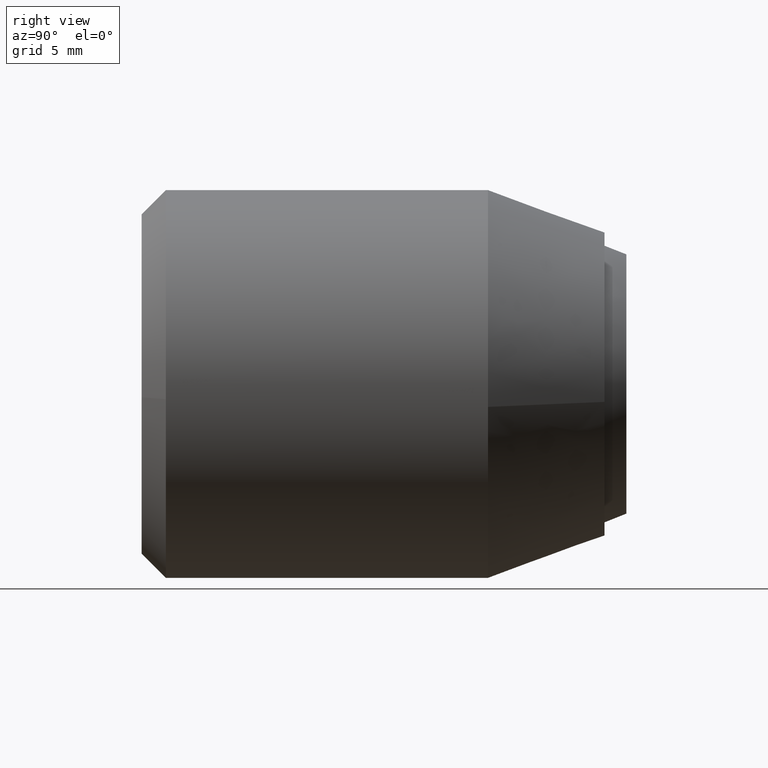
[diagram: clean part render]
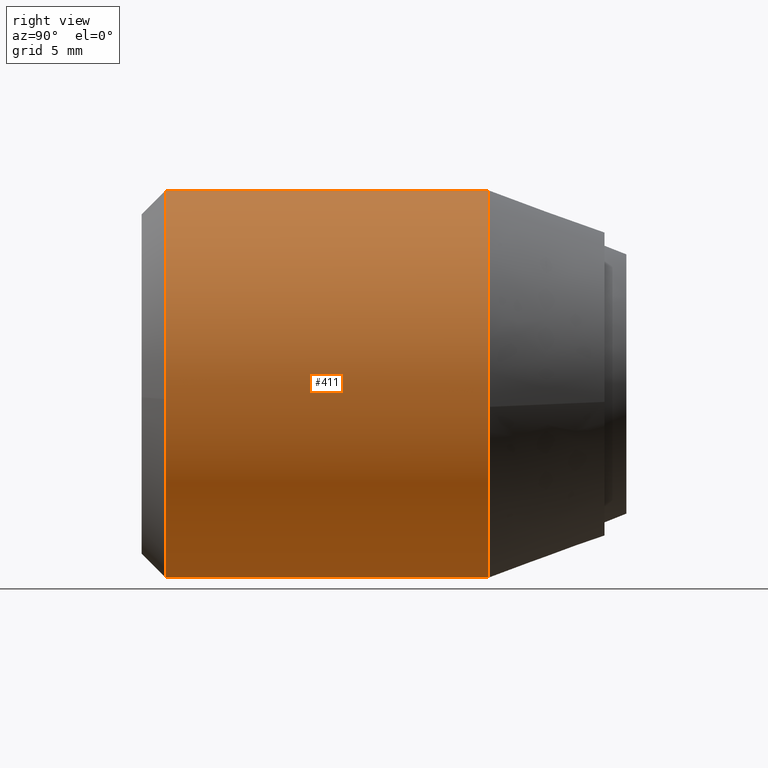
[diagram: same view with one face highlighted and labeled with its STEP entity id]
A machine part, right view. The second image highlights one B-rep face of the part: STEP entity #411.
In plain terms, the highlighted face is a freeform B-spline surface patch.
Its self-contained STEP definition (entity closure, byte-faithful):
#230=CARTESIAN_POINT('',(-1.874588911880106,-4.475788149999998,-7.777269212998617));
#231=CARTESIAN_POINT('',(-1.190626377330084,-4.475788149999998,-7.942127667591645));
#232=CARTESIAN_POINT('',(-0.488388316278856,-4.475788149999998,-7.985078387374935));
#233=CARTESIAN_POINT('',(7.496690071096078,-4.475788149999998,-8.473466703653791));
#234=CARTESIAN_POINT('',(7.985078387374934,-4.475788149999998,-0.488388316278857));
#235=CARTESIAN_POINT('',(8.473466703653790,-4.475788149999998,7.496690071096077));
#236=CARTESIAN_POINT('',(0.488388316278856,-4.475788149999998,7.985078387374933));
#237=CARTESIAN_POINT('',(-7.496690071096078,-4.475788149999998,8.473466703653788));
#238=CARTESIAN_POINT('',(-7.985078387374934,-4.475788149999998,0.488388316278855));
#239=CARTESIAN_POINT('',(-1.874588911880106,-18.440605296250009,-7.777269212998617));
#240=CARTESIAN_POINT('',(-1.190626377330084,-18.440605296250009,-7.942127667591645));
#241=CARTESIAN_POINT('',(-0.488388316278856,-18.440605296250009,-7.985078387374935));
#242=CARTESIAN_POINT('',(7.496690071096078,-18.440605296250002,-8.473466703653791));
#243=CARTESIAN_POINT('',(7.985078387374934,-18.440605296250009,-0.488388316278857));
#244=CARTESIAN_POINT('',(8.473466703653790,-18.440605296250002,7.496690071096077));
#245=CARTESIAN_POINT('',(0.488388316278856,-18.440605296250009,7.985078387374933));
#246=CARTESIAN_POINT('',(-7.496690071096078,-18.440605296250002,8.473466703653788));
#247=CARTESIAN_POINT('',(-7.985078387374934,-18.440605296250009,0.488388316278855));
#255=(BOUNDED_SURFACE()B_SPLINE_SURFACE(2,1,((#230,#239),(#231,#240),(#232,#241),(#233,#242),(#234,#243),(#235,#244),(#236,#245),(#237,#246),(#238,#247)),.UNSPECIFIED.,.F.,.F.,.U.)B_SPLINE_SURFACE_WITH_KNOTS((3,2,2,2,3),(2,2),(0.0,1.590580079512685,14.845414075451730,28.100248071390769,41.355082067329803),(0.0,13.964817146250009),.UNSPECIFIED.)GEOMETRIC_REPRESENTATION_ITEM()RATIONAL_B_SPLINE_SURFACE(((0.938140952186599,0.938140952186599),(0.964852813742386,0.964852813742386),(1.0,1.0),(0.707106781186548,0.707106781186548),(1.0,1.0),(0.707106781186548,0.707106781186548),(1.0,1.0),(0.707106781186548,0.707106781186548),(1.0,1.0)))REPRESENTATION_ITEM('')SURFACE());
#256=CARTESIAN_POINT('',(-1.874588260423986,-18.100000000000001,-7.777269370021854));
#257=VERTEX_POINT('',#256);
#258=CARTESIAN_POINT('',(0.0,-18.100000000000001,-8.000000000000002));
#259=VERTEX_POINT('',#258);
#260=CARTESIAN_POINT('',(-1.874588260423986,-18.100000000000001,-7.777269370021854));
#261=CARTESIAN_POINT('',(-0.950525745030588,-18.100000000000001,-8.000000000000002));
#262=CARTESIAN_POINT('',(0.0,-18.100000000000001,-8.000000000000002));
#270=(BOUNDED_CURVE()B_SPLINE_CURVE(2,(#260,#261,#262),.UNSPECIFIED.,.F.,.U.)B_SPLINE_CURVE_WITH_KNOTS((3,3),(0.959962737167990,1.0),.UNSPECIFIED.)CURVE()GEOMETRIC_REPRESENTATION_ITEM()RATIONAL_B_SPLINE_CURVE((0.921210943469347,0.953093428866610,1.0))REPRESENTATION_ITEM(''));
#271=EDGE_CURVE('',#257,#259,#270,.T.);
#272=ORIENTED_EDGE('',*,*,#271,.F.);
#273=CARTESIAN_POINT('',(-1.874588268468437,-4.808085999999999,-7.777269368082868));
#274=VERTEX_POINT('',#273);
#275=CARTESIAN_POINT('',(-1.874588268468437,-4.808085999999999,-7.777269368082868));
#276=CARTESIAN_POINT('',(-1.874588260423986,-18.100000000000001,-7.777269370021854));
#277=QUASI_UNIFORM_CURVE('',1,(#275,#276),.UNSPECIFIED.,.F.,.U.);
#278=EDGE_CURVE('',#274,#257,#277,.T.);
#279=ORIENTED_EDGE('',*,*,#278,.F.);
#280=CARTESIAN_POINT('',(0.0,-4.808085999999999,-8.000000000000002));
#281=VERTEX_POINT('',#280);
#282=CARTESIAN_POINT('',(-1.874588268468437,-4.808085999999999,-7.777269368082868));
#283=CARTESIAN_POINT('',(-0.950525753422238,-4.808085999999999,-8.000000000000002));
#284=CARTESIAN_POINT('',(0.0,-4.808085999999999,-8.000000000000002));
#292=(BOUNDED_CURVE()B_SPLINE_CURVE(2,(#282,#283,#284),.UNSPECIFIED.,.F.,.U.)B_SPLINE_CURVE_WITH_KNOTS((3,3),(0.959962736831104,1.0),.UNSPECIFIED.)CURVE()GEOMETRIC_REPRESENTATION_ITEM()RATIONAL_B_SPLINE_CURVE((0.921210942932808,0.953093428471923,1.0))REPRESENTATION_ITEM(''));
#293=EDGE_CURVE('',#274,#281,#292,.T.);
#294=ORIENTED_EDGE('',*,*,#293,.T.);
#295=CARTESIAN_POINT('',(7.944075678025839,-4.808083722398557,-0.944271337131582));
#296=VERTEX_POINT('',#295);
#297=CARTESIAN_POINT('',(0.0,-4.808085999999999,-8.000000000000002));
#298=CARTESIAN_POINT('',(7.105397995833197,-4.808084861199280,-7.999999951076153));
#299=CARTESIAN_POINT('',(7.944075678025839,-4.808083722398557,-0.944271337131582));
#307=(BOUNDED_CURVE()B_SPLINE_CURVE(2,(#297,#298,#299),.UNSPECIFIED.,.F.,.U.)B_SPLINE_CURVE_WITH_KNOTS((3,3),(0.0,0.229562525472899),.UNSPECIFIED.)CURVE()GEOMETRIC_REPRESENTATION_ITEM()RATIONAL_B_SPLINE_CURVE((1.0,0.731050771981190,0.956026856026257))REPRESENTATION_ITEM(''));
#308=EDGE_CURVE('',#281,#296,#307,.T.);
#309=ORIENTED_EDGE('',*,*,#308,.T.);
#310=CARTESIAN_POINT('',(0.0,-4.808085999999999,7.999999999999998));
#311=VERTEX_POINT('',#310);
#312=CARTESIAN_POINT('',(7.944075678025839,-4.808083722398557,-0.944271337131582));
#313=CARTESIAN_POINT('',(7.999999198465768,-4.808083782300880,-0.473791627893970));
#314=CARTESIAN_POINT('',(7.999999222841892,-4.808083849745175,0.000000092376777));
#315=CARTESIAN_POINT('',(7.999999634434140,-4.808084988545896,8.000000043452928));
#316=CARTESIAN_POINT('',(0.0,-4.808085999999999,7.999999999999998));
#324=(BOUNDED_CURVE()B_SPLINE_CURVE(2,(#312,#313,#314,#315,#316),.UNSPECIFIED.,.F.,.U.)B_SPLINE_CURVE_WITH_KNOTS((3,2,3),(0.229562525472899,0.250000000000000,0.500000000000000),.UNSPECIFIED.)CURVE()GEOMETRIC_REPRESENTATION_ITEM()RATIONAL_B_SPLINE_CURVE((0.956026856026257,0.976056009205358,1.0,0.707106781186548,1.0))REPRESENTATION_ITEM(''));
#325=EDGE_CURVE('',#296,#311,#324,.T.);
#326=ORIENTED_EDGE('',*,*,#325,.T.);
#327=CARTESIAN_POINT('',(-7.985077604216481,-4.808080615921306,0.488385069813843));
#328=VERTEX_POINT('',#327);
#329=CARTESIAN_POINT('',(0.0,-4.808085999999999,7.999999999999998));
#330=CARTESIAN_POINT('',(-7.525651055125307,-4.808083307960653,7.999999970089797));
#331=CARTESIAN_POINT('',(-7.985077604216481,-4.808080615921306,0.488385069813843));
#339=(BOUNDED_CURVE()B_SPLINE_CURVE(2,(#329,#330,#331),.UNSPECIFIED.,.F.,.U.)B_SPLINE_CURVE_WITH_KNOTS((3,3),(0.500000000000000,0.739333031101071),.UNSPECIFIED.)CURVE()GEOMETRIC_REPRESENTATION_ITEM()RATIONAL_B_SPLINE_CURVE((1.0,0.719603912609709,0.976072189251411))REPRESENTATION_ITEM(''));
#340=EDGE_CURVE('',#311,#328,#339,.T.);
#341=ORIENTED_EDGE('',*,*,#340,.T.);
#342=CARTESIAN_POINT('',(-7.985078427651679,-18.100000000000001,0.488387657759005));
#343=VERTEX_POINT('',#342);
#344=CARTESIAN_POINT('',(-7.985077604216481,-4.808080615921306,0.488385069813843));
#345=CARTESIAN_POINT('',(-7.985078427651679,-18.100000000000001,0.488387657759005));
#346=QUASI_UNIFORM_CURVE('',1,(#344,#345),.UNSPECIFIED.,.F.,.U.);
#347=EDGE_CURVE('',#328,#343,#346,.T.);
#348=ORIENTED_EDGE('',*,*,#347,.T.);
#349=CARTESIAN_POINT('',(-7.975338669865801,-18.099999999998040,0.627672765837859));
#350=VERTEX_POINT('',#349);
#351=CARTESIAN_POINT('',(-7.975338669865801,-18.099999999998040,0.627672765837859));
#352=CARTESIAN_POINT('',(-7.980816338874669,-18.100000000000001,0.558072381912545));
#353=CARTESIAN_POINT('',(-7.985078427651679,-18.100000000000001,0.488387657759005));
#361=(BOUNDED_CURVE()B_SPLINE_CURVE(2,(#351,#352,#353),.UNSPECIFIED.,.F.,.U.)B_SPLINE_CURVE_WITH_KNOTS((3,3),(0.736331300632124,0.739332990701424),.UNSPECIFIED.)CURVE()GEOMETRIC_REPRESENTATION_ITEM()RATIONAL_B_SPLINE_CURVE((0.969723356170475,0.972855505261019,0.976072102667241))REPRESENTATION_ITEM(''));
#362=EDGE_CURVE('',#350,#343,#361,.T.);
#363=ORIENTED_EDGE('',*,*,#362,.F.);
#364=CARTESIAN_POINT('',(0.0,-18.100000000000001,7.999999999999998));
#365=VERTEX_POINT('',#364);
#366=CARTESIAN_POINT('',(0.0,-18.100000000000001,7.999999999999998));
#367=CARTESIAN_POINT('',(-7.395123933237853,-18.099999999999991,7.999999999999999));
#368=CARTESIAN_POINT('',(-7.975338669865801,-18.099999999998044,0.627672765837859));
#376=(BOUNDED_CURVE()B_SPLINE_CURVE(2,(#366,#367,#368),.UNSPECIFIED.,.F.,.U.)B_SPLINE_CURVE_WITH_KNOTS((3,3),(0.500000000000000,0.736331300632124),.UNSPECIFIED.)CURVE()GEOMETRIC_REPRESENTATION_ITEM()RATIONAL_B_SPLINE_CURVE((1.0,0.723120658605950,0.969723356170475))REPRESENTATION_ITEM(''));
#377=EDGE_CURVE('',#365,#350,#376,.T.);
#378=ORIENTED_EDGE('',*,*,#377,.F.);
#379=CARTESIAN_POINT('',(7.975338669865801,-18.099999999998040,-0.627672765837861));
#380=VERTEX_POINT('',#379);
#381=CARTESIAN_POINT('',(7.975338669865801,-18.099999999998044,-0.627672765837861));
#382=CARTESIAN_POINT('',(8.0,-18.100000000000001,-0.314320856076372));
#383=CARTESIAN_POINT('',(8.0,-18.100000000000001,-1.291960E-015));
#384=CARTESIAN_POINT('',(8.0,-18.099999999999998,7.999999999999999));
#385=CARTESIAN_POINT('',(0.0,-18.100000000000001,7.999999999999998));
#393=(BOUNDED_CURVE()B_SPLINE_CURVE(2,(#381,#382,#383,#384,#385),.UNSPECIFIED.,.F.,.U.)B_SPLINE_CURVE_WITH_KNOTS((3,2,3),(0.236331300632125,0.250000000000000,0.500000000000000),.UNSPECIFIED.)CURVE()GEOMETRIC_REPRESENTATION_ITEM()RATIONAL_B_SPLINE_CURVE((0.969723356170475,0.983986122580598,1.0,0.707106781186548,1.0))REPRESENTATION_ITEM(''));
#394=EDGE_CURVE('',#380,#365,#393,.T.);
#395=ORIENTED_EDGE('',*,*,#394,.F.);
#396=CARTESIAN_POINT('',(0.0,-18.100000000000001,-8.000000000000002));
#397=CARTESIAN_POINT('',(7.395123933237854,-18.099999999999991,-8.000000000000002));
#398=CARTESIAN_POINT('',(7.975338669865801,-18.099999999998044,-0.627672765837861));
#406=(BOUNDED_CURVE()B_SPLINE_CURVE(2,(#396,#397,#398),.UNSPECIFIED.,.F.,.U.)B_SPLINE_CURVE_WITH_KNOTS((3,3),(0.0,0.236331300632124),.UNSPECIFIED.)CURVE()GEOMETRIC_REPRESENTATION_ITEM()RATIONAL_B_SPLINE_CURVE((1.0,0.723120658605950,0.969723356170475))REPRESENTATION_ITEM(''));
#407=EDGE_CURVE('',#259,#380,#406,.T.);
#408=ORIENTED_EDGE('',*,*,#407,.F.);
#409=EDGE_LOOP('',(#272,#279,#294,#309,#326,#341,#348,#363,#378,#395,#408));
#410=FACE_OUTER_BOUND('',#409,.T.);
#411=ADVANCED_FACE('',(#410),#255,.T.);